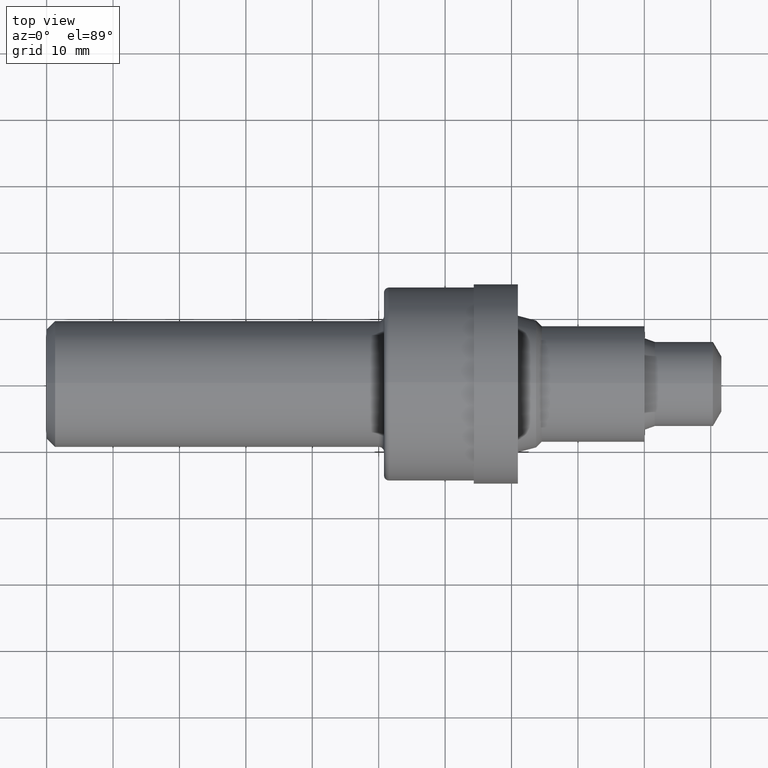
[diagram: clean part render]
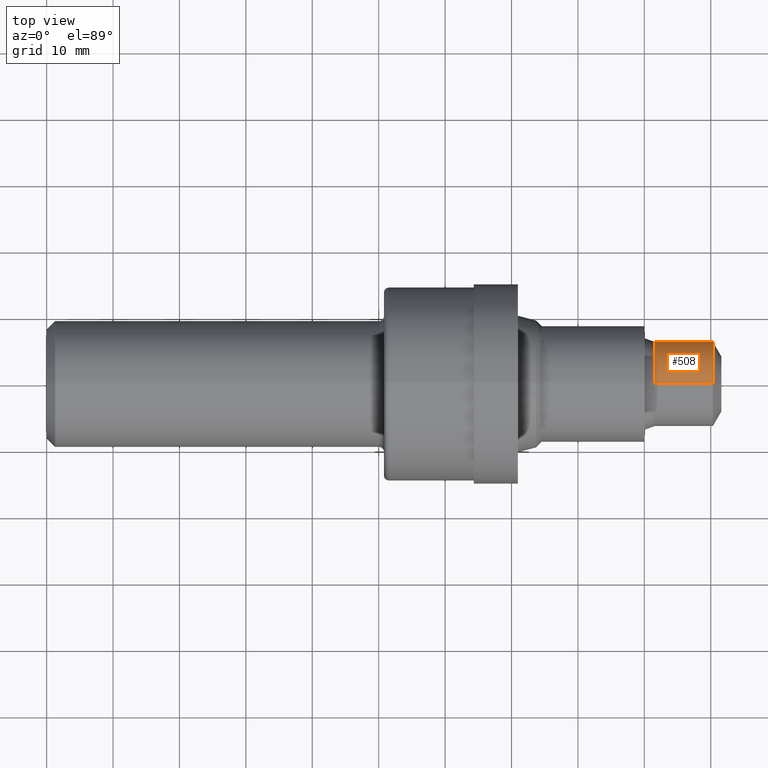
[diagram: same view with one face highlighted and labeled with its STEP entity id]
A machine part, top view. The second image highlights one B-rep face of the part: STEP entity #508.
In plain terms, the highlighted cylindrical surface (partial cylindrical patch) has radius 6.3602 mm, axis along (-1, -0, -0).
Its self-contained STEP definition (entity closure, byte-faithful):
#4 = EDGE_LOOP ( 'NONE', ( #625, #432, #792, #803 ) ) ;
#47 = LINE ( 'NONE', #753, #530 ) ;
#67 = CARTESIAN_POINT ( 'NONE',  ( 3.606000000000000316, 0.0000000000000000000, 0.0000000000000000000 ) ) ;
#68 = FACE_OUTER_BOUND ( 'NONE', #4, .T. ) ;
#80 = CARTESIAN_POINT ( 'NONE',  ( 3.606000000000000316, 0.0000000000000000000, 0.2504000000000000115 ) ) ;
#95 = CARTESIAN_POINT ( 'NONE',  ( 0.0000000000000000000, 3.066515585064972173E-17, -0.2504000000000000115 ) ) ;
#116 = EDGE_CURVE ( 'NONE', #121, #181, #623, .T. ) ;
#117 = CARTESIAN_POINT ( 'NONE',  ( 3.950000000000000178, 0.0000000000000000000, 0.0000000000000000000 ) ) ;
#121 = VERTEX_POINT ( 'NONE', #470 ) ;
#132 = DIRECTION ( 'NONE',  ( 0.0000000000000000000, 0.0000000000000000000, 1.000000000000000000 ) ) ;
#181 = VERTEX_POINT ( 'NONE', #205 ) ;
#183 = DIRECTION ( 'NONE',  ( -1.000000000000000000, -0.0000000000000000000, -0.0000000000000000000 ) ) ;
#189 = DIRECTION ( 'NONE',  ( -1.000000000000000000, -0.0000000000000000000, -0.0000000000000000000 ) ) ;
#190 = AXIS2_PLACEMENT_3D ( 'NONE', #67, #513, #132 ) ;
#205 = CARTESIAN_POINT ( 'NONE',  ( 3.606000000000000316, 3.204693429602468352E-17, -0.2504000000000000115 ) ) ;
#243 = CIRCLE ( 'NONE', #504, 0.2504000000000000115 ) ;
#270 = DIRECTION ( 'NONE',  ( -1.000000000000000000, -0.0000000000000000000, -0.0000000000000000000 ) ) ;
#392 = CYLINDRICAL_SURFACE ( 'NONE', #701, 0.2504000000000000115 ) ;
#432 = ORIENTED_EDGE ( 'NONE', *, *, #116, .T. ) ;
#452 = VECTOR ( 'NONE', #270, 39.37007874015748143 ) ;
#463 = EDGE_CURVE ( 'NONE', #551, #121, #243, .T. ) ;
#470 = CARTESIAN_POINT ( 'NONE',  ( 3.950000000000000178, 3.066515585064972173E-17, -0.2504000000000000115 ) ) ;
#504 = AXIS2_PLACEMENT_3D ( 'NONE', #117, #183, #673 ) ;
#508 = ADVANCED_FACE ( 'NONE', ( #68 ), #392, .T. ) ;
#509 = EDGE_CURVE ( 'NONE', #551, #674, #47, .T. ) ;
#513 = DIRECTION ( 'NONE',  ( -1.000000000000000000, -0.0000000000000000000, -0.0000000000000000000 ) ) ;
#530 = VECTOR ( 'NONE', #558, 39.37007874015748143 ) ;
#551 = VERTEX_POINT ( 'NONE', #817 ) ;
#554 = DIRECTION ( 'NONE',  ( 0.0000000000000000000, 0.0000000000000000000, 1.000000000000000000 ) ) ;
#558 = DIRECTION ( 'NONE',  ( -1.000000000000000000, -0.0000000000000000000, -0.0000000000000000000 ) ) ;
#616 = CIRCLE ( 'NONE', #190, 0.2504000000000000115 ) ;
#623 = LINE ( 'NONE', #95, #452 ) ;
#625 = ORIENTED_EDGE ( 'NONE', *, *, #463, .T. ) ;
#673 = DIRECTION ( 'NONE',  ( 0.0000000000000000000, 0.0000000000000000000, 1.000000000000000000 ) ) ;
#674 = VERTEX_POINT ( 'NONE', #80 ) ;
#678 = CARTESIAN_POINT ( 'NONE',  ( 0.0000000000000000000, 0.0000000000000000000, 0.0000000000000000000 ) ) ;
#701 = AXIS2_PLACEMENT_3D ( 'NONE', #678, #189, #554 ) ;
#709 = EDGE_CURVE ( 'NONE', #674, #181, #616, .T. ) ;
#753 = CARTESIAN_POINT ( 'NONE',  ( 0.0000000000000000000, 0.0000000000000000000, 0.2504000000000000115 ) ) ;
#792 = ORIENTED_EDGE ( 'NONE', *, *, #709, .F. ) ;
#803 = ORIENTED_EDGE ( 'NONE', *, *, #509, .F. ) ;
#817 = CARTESIAN_POINT ( 'NONE',  ( 3.950000000000000178, 0.0000000000000000000, 0.2504000000000000115 ) ) ;